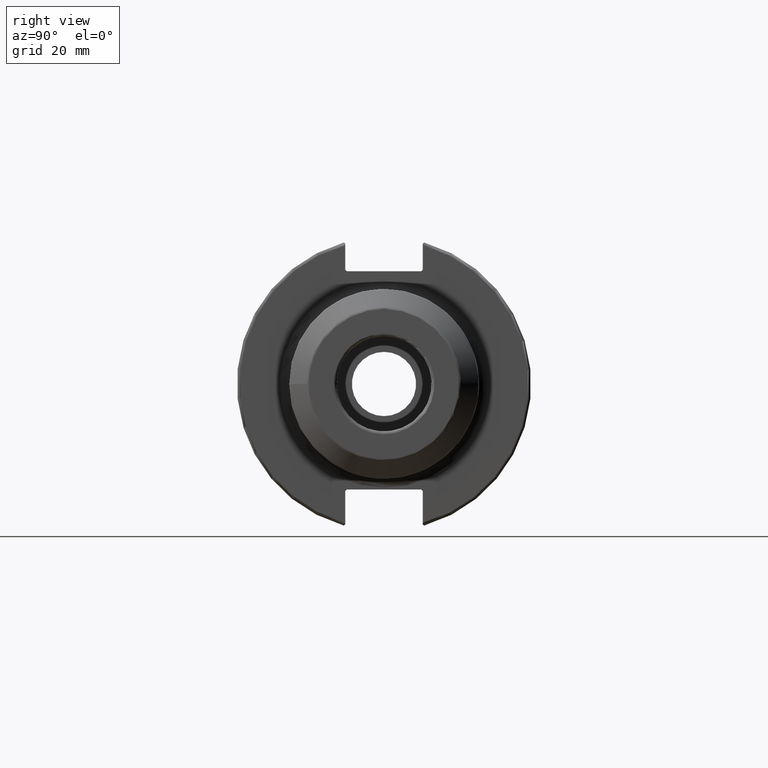
[diagram: clean part render]
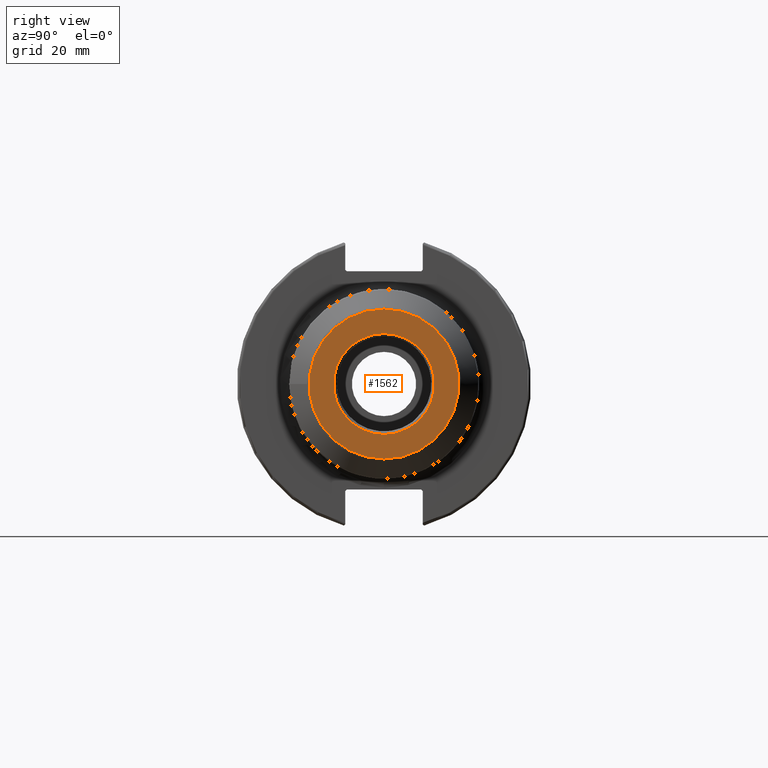
[diagram: same view with one face highlighted and labeled with its STEP entity id]
A machine part, right view. The second image highlights one B-rep face of the part: STEP entity #1562.
In plain terms, the highlighted planar face has unit normal (1, 0, 0).
Its self-contained STEP definition (entity closure, byte-faithful):
#61=FACE_BOUND('',#228,.T.);
#85=PLANE('',#1691);
#132=FACE_OUTER_BOUND('',#227,.T.);
#227=EDGE_LOOP('',(#1097));
#228=EDGE_LOOP('',(#1098));
#577=CIRCLE('',#1689,25.0857864376269);
#579=CIRCLE('',#1692,16.875);
#665=VERTEX_POINT('',#2478);
#666=VERTEX_POINT('',#2482);
#834=EDGE_CURVE('',#665,#665,#577,.T.);
#836=EDGE_CURVE('',#666,#666,#579,.T.);
#1097=ORIENTED_EDGE('',*,*,#834,.F.);
#1098=ORIENTED_EDGE('',*,*,#836,.F.);
#1562=ADVANCED_FACE('',(#132,#61),#85,.T.);
#1689=AXIS2_PLACEMENT_3D('',#2479,#1894,#1895);
#1691=AXIS2_PLACEMENT_3D('',#2481,#1898,#1899);
#1692=AXIS2_PLACEMENT_3D('',#2483,#1900,#1901);
#1894=DIRECTION('center_axis',(-1.,0.,0.));
#1895=DIRECTION('ref_axis',(0.,-1.,1.83697019872103E-16));
#1898=DIRECTION('center_axis',(1.,0.,0.));
#1899=DIRECTION('ref_axis',(0.,0.,-1.));
#1900=DIRECTION('center_axis',(1.,0.,0.));
#1901=DIRECTION('ref_axis',(0.,-1.,1.83697019872103E-16));
#2478=CARTESIAN_POINT('',(101.6,-3.07212280649339E-15,25.0857864376269));
#2479=CARTESIAN_POINT('Origin',(101.6,0.,0.));
#2481=CARTESIAN_POINT('Origin',(101.6,15.875,0.));
#2482=CARTESIAN_POINT('',(101.6,-2.06659147356116E-15,16.875));
#2483=CARTESIAN_POINT('Origin',(101.6,0.,0.));